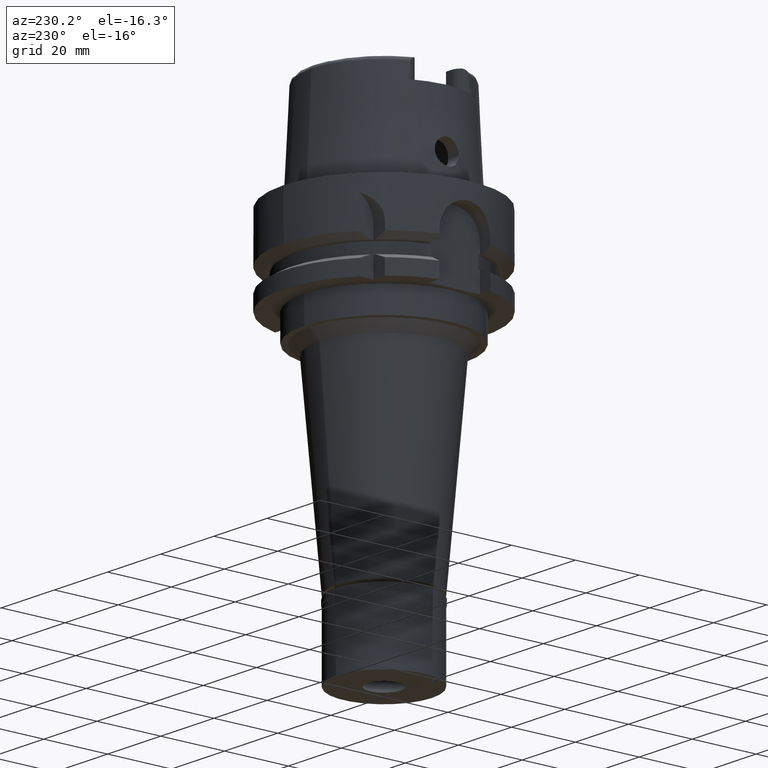
[diagram: clean part render]
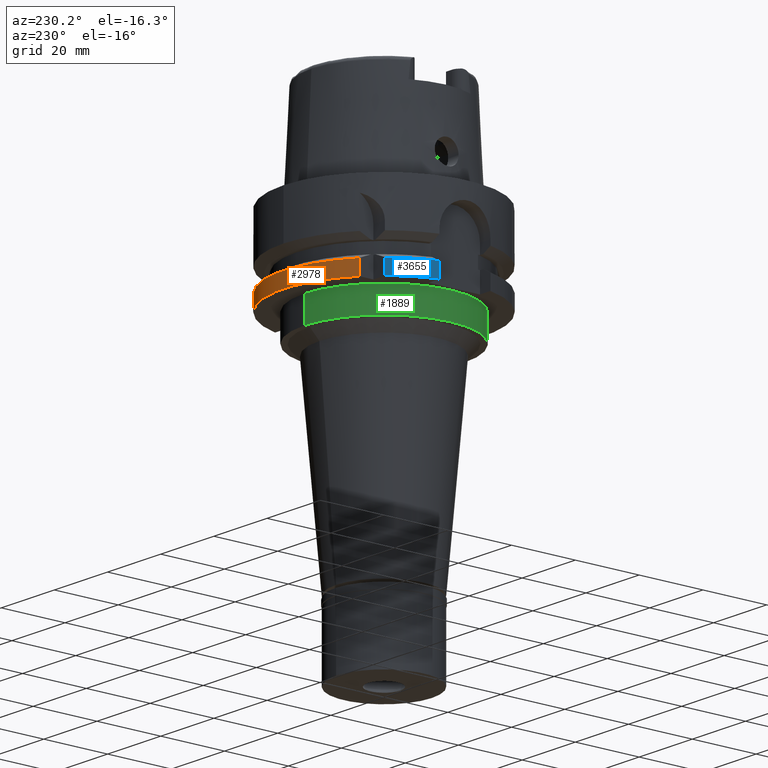
[diagram: same view with three faces highlighted in distinct colors, each labeled with its STEP entity id]
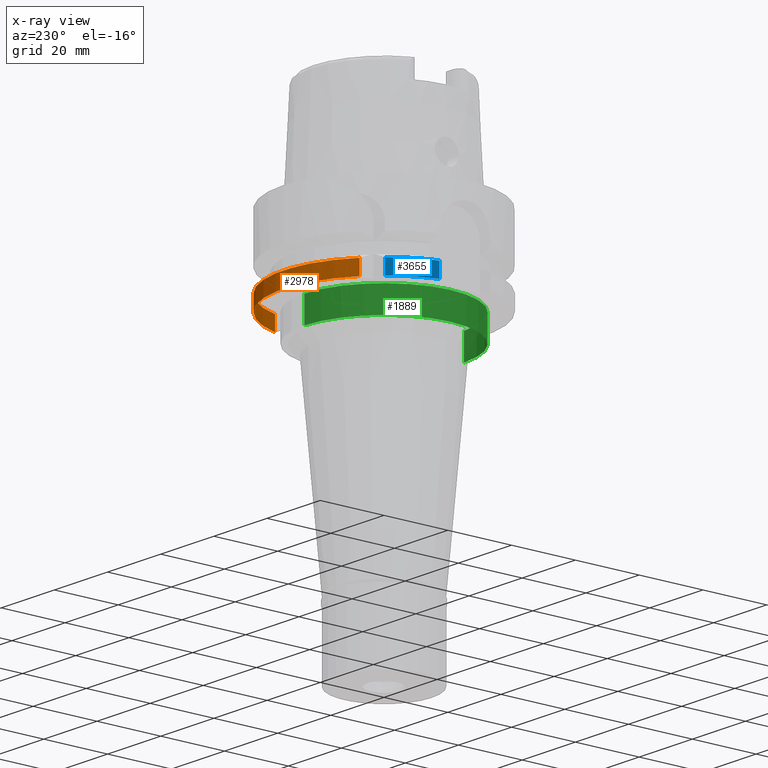
[diagram: x-ray of the same camera — body ghosted, the three highlighted faces saturated]
A machine part, auxiliary view with three faces highlighted in distinct colors.
The next image is the same camera in x-ray (body ghosted, the three faces saturated) — at least one of them is partly hidden behind the body in this view.
Their STEP definitions:

[orange] entity #2978 — the highlighted cylindrical surface (partial cylindrical patch) has radius 31.5 mm, axis along (0, 0, 1).
#14 = VERTEX_POINT ( 'NONE', #3301 ) ;
#128 = VERTEX_POINT ( 'NONE', #2289 ) ;
#192 = ORIENTED_EDGE ( 'NONE', *, *, #2640, .T. ) ;
#483 = CARTESIAN_POINT ( 'NONE',  ( -20.00000000000000000, 24.33617949844698458, -22.91836563500000068 ) ) ;
#591 = VECTOR ( 'NONE', #2671, 1000.000000000000114 ) ;
#796 = VERTEX_POINT ( 'NONE', #1227 ) ;
#801 = CIRCLE ( 'NONE', #1505, 31.50000000000000000 ) ;
#824 = EDGE_CURVE ( 'NONE', #1903, #14, #801, .T. ) ;
#832 = DIRECTION ( 'NONE',  ( 0.0000000000000000000, 1.000000000000000000, 0.0000000000000000000 ) ) ;
#876 = B_SPLINE_CURVE_WITH_KNOTS ( 'NONE', 3,
 ( #3922, #483, #1442, #2613 ),
 .UNSPECIFIED., .F., .F.,
 ( 4, 4 ),
 ( 0.0000000000000000000, 1.000000000000000000 ),
 .UNSPECIFIED. ) ;
#899 = AXIS2_PLACEMENT_3D ( 'NONE', #5359, #1705, #1626 ) ;
#1227 = CARTESIAN_POINT ( 'NONE',  ( 30.18691748977999723, 9.000000692501998856, -21.37750466033000052 ) ) ;
#1442 = CARTESIAN_POINT ( 'NONE',  ( -20.00000000000000000, 24.33618327286396621, -24.45918281749999679 ) ) ;
#1467 = LINE ( 'NONE', #4368, #591 ) ;
#1505 = AXIS2_PLACEMENT_3D ( 'NONE', #2904, #2468, #2014 ) ;
#1626 = DIRECTION ( 'NONE',  ( -0.6349206349206079070, 0.7725773665802099233, 0.0000000000000000000 ) ) ;
#1705 = DIRECTION ( 'NONE',  ( 0.0000000000000000000, 0.0000000000000000000, -1.000000000000000000 ) ) ;
#1903 = VERTEX_POINT ( 'NONE', #4390 ) ;
#1984 = DIRECTION ( 'NONE',  ( 0.0000000000000000000, 0.0000000000000000000, 1.000000000000000000 ) ) ;
#2014 = DIRECTION ( 'NONE',  ( 0.0000000000000000000, 1.000000000000000000, 0.0000000000000000000 ) ) ;
#2289 = CARTESIAN_POINT ( 'NONE',  ( -20.00001377820999693, 24.33617572402999940, -21.37754845249999747 ) ) ;
#2464 = CARTESIAN_POINT ( 'NONE',  ( 0.0000000000000000000, 0.0000000000000000000, 0.0000000000000000000 ) ) ;
#2468 = DIRECTION ( 'NONE',  ( 0.0000000000000000000, 0.0000000000000000000, 1.000000000000000000 ) ) ;
#2613 = CARTESIAN_POINT ( 'NONE',  ( -20.00000000000000000, 24.33618704727999926, -26.00000000000000000 ) ) ;
#2640 = EDGE_CURVE ( 'NONE', #128, #796, #5392, .T. ) ;
#2671 = DIRECTION ( 'NONE',  ( -4.466501118554943944E-08, 1.498112946369981561E-07, 0.9999999999999876765 ) ) ;
#2757 = ORIENTED_EDGE ( 'NONE', *, *, #824, .T. ) ;
#2904 = CARTESIAN_POINT ( 'NONE',  ( 0.0000000000000000000, 0.0000000000000000000, -26.00000000000000000 ) ) ;
#2978 = ADVANCED_FACE ( 'NONE', ( #4098 ), #5412, .T. ) ;
#3301 = CARTESIAN_POINT ( 'NONE',  ( -20.00000000000000000, 24.33618704727999926, -26.00000000000000000 ) ) ;
#3552 = ORIENTED_EDGE ( 'NONE', *, *, #4576, .F. ) ;
#3922 = CARTESIAN_POINT ( 'NONE',  ( -20.00001377820999693, 24.33617572402999940, -21.37754845249999747 ) ) ;
#4098 = FACE_OUTER_BOUND ( 'NONE', #4179, .T. ) ;
#4179 = EDGE_LOOP ( 'NONE', ( #192, #4210, #2757, #3552 ) ) ;
#4210 = ORIENTED_EDGE ( 'NONE', *, *, #4481, .F. ) ;
#4303 = AXIS2_PLACEMENT_3D ( 'NONE', #2464, #1984, #832 ) ;
#4368 = CARTESIAN_POINT ( 'NONE',  ( 30.18691769625000276, 9.000000000000000000, -26.00000000000000000 ) ) ;
#4390 = CARTESIAN_POINT ( 'NONE',  ( 30.18691769625000276, 9.000000000000000000, -26.00000000000000000 ) ) ;
#4481 = EDGE_CURVE ( 'NONE', #1903, #796, #1467, .T. ) ;
#4576 = EDGE_CURVE ( 'NONE', #128, #14, #876, .T. ) ;
#5359 = CARTESIAN_POINT ( 'NONE',  ( 0.0000000000000000000, 0.0000000000000000000, -21.37749907476000288 ) ) ;
#5392 = CIRCLE ( 'NONE', #899, 31.50000000000000711 ) ;
#5412 = CYLINDRICAL_SURFACE ( 'NONE', #4303, 31.50000000000000000 ) ;

[blue] entity #3655 — the highlighted cylindrical surface (partial cylindrical patch) has radius 31.5 mm, axis along (0, 0, 1).
#400 = FACE_OUTER_BOUND ( 'NONE', #2739, .T. ) ;
#443 = EDGE_CURVE ( 'NONE', #1388, #2429, #2048, .T. ) ;
#588 = EDGE_CURVE ( 'NONE', #2790, #2429, #1865, .T. ) ;
#691 = VERTEX_POINT ( 'NONE', #3414 ) ;
#779 = CIRCLE ( 'NONE', #2796, 31.50000000000000000 ) ;
#792 = CARTESIAN_POINT ( 'NONE',  ( -30.46719549928999982, 7.999999900497000382, -21.37749817145999742 ) ) ;
#855 = ORIENTED_EDGE ( 'NONE', *, *, #4932, .T. ) ;
#1038 = CARTESIAN_POINT ( 'NONE',  ( -30.46719547316000032, 8.000000000000000000, -26.00000000000000000 ) ) ;
#1351 = CARTESIAN_POINT ( 'NONE',  ( -30.46719547317000121, 8.000000000001000089, -21.37749907476000288 ) ) ;
#1388 = VERTEX_POINT ( 'NONE', #1351 ) ;
#1398 = AXIS2_PLACEMENT_3D ( 'NONE', #5403, #2968, #1663 ) ;
#1570 = DIRECTION ( 'NONE',  ( -5.375450050143217706E-07, -6.540899232592266923E-07, 0.9999999999996415090 ) ) ;
#1663 = DIRECTION ( 'NONE',  ( 0.0000000000000000000, 1.000000000000000000, 0.0000000000000000000 ) ) ;
#1865 = CIRCLE ( 'NONE', #4935, 31.50000000000000711 ) ;
#2048 = LINE ( 'NONE', #792, #2471 ) ;
#2061 = CARTESIAN_POINT ( 'NONE',  ( 0.0000000000000000000, 0.0000000000000000000, -21.37749907476000288 ) ) ;
#2323 = CARTESIAN_POINT ( 'NONE',  ( -24.33618704727999926, 20.00000000000000000, -26.00000000000000000 ) ) ;
#2429 = VERTEX_POINT ( 'NONE', #1038 ) ;
#2471 = VECTOR ( 'NONE', #2934, 1000.000000000000000 ) ;
#2562 = DIRECTION ( 'NONE',  ( 0.0000000000000000000, 0.0000000000000000000, -1.000000000000000000 ) ) ;
#2655 = DIRECTION ( 'NONE',  ( 0.0000000000000000000, 0.0000000000000000000, 1.000000000000000000 ) ) ;
#2739 = EDGE_LOOP ( 'NONE', ( #3169, #2930, #855, #3194 ) ) ;
#2790 = VERTEX_POINT ( 'NONE', #4376 ) ;
#2796 = AXIS2_PLACEMENT_3D ( 'NONE', #2061, #2562, #4994 ) ;
#2930 = ORIENTED_EDGE ( 'NONE', *, *, #443, .F. ) ;
#2934 = DIRECTION ( 'NONE',  ( 5.652302588628998356E-09, 2.152591978751999645E-08, -0.9999999999999997780 ) ) ;
#2968 = DIRECTION ( 'NONE',  ( 0.0000000000000000000, 0.0000000000000000000, 1.000000000000000000 ) ) ;
#3094 = CARTESIAN_POINT ( 'NONE',  ( 0.0000000000000000000, 0.0000000000000000000, -26.00000000000000000 ) ) ;
#3169 = ORIENTED_EDGE ( 'NONE', *, *, #588, .T. ) ;
#3194 = ORIENTED_EDGE ( 'NONE', *, *, #3342, .F. ) ;
#3342 = EDGE_CURVE ( 'NONE', #2790, #691, #5366, .T. ) ;
#3414 = CARTESIAN_POINT ( 'NONE',  ( -24.33618953209000324, 19.99999697646000030, -21.37748824071000087 ) ) ;
#3655 = ADVANCED_FACE ( 'NONE', ( #400 ), #3812, .T. ) ;
#3812 = CYLINDRICAL_SURFACE ( 'NONE', #1398, 31.50000000000000000 ) ;
#4349 = DIRECTION ( 'NONE',  ( -0.7725773665802099233, 0.6349206349206079070, 0.0000000000000000000 ) ) ;
#4376 = CARTESIAN_POINT ( 'NONE',  ( -24.33618704727999926, 20.00000000000000000, -26.00000000000000000 ) ) ;
#4734 = VECTOR ( 'NONE', #1570, 1000.000000000000114 ) ;
#4932 = EDGE_CURVE ( 'NONE', #1388, #691, #779, .T. ) ;
#4935 = AXIS2_PLACEMENT_3D ( 'NONE', #3094, #2655, #4349 ) ;
#4994 = DIRECTION ( 'NONE',  ( -0.9672125547036138915, 0.2539682539683034701, 0.0000000000000000000 ) ) ;
#5366 = LINE ( 'NONE', #2323, #4734 ) ;
#5403 = CARTESIAN_POINT ( 'NONE',  ( 0.0000000000000000000, 0.0000000000000000000, 0.0000000000000000000 ) ) ;

[green] entity #1889 — the highlighted cylindrical surface (partial cylindrical patch) has radius 25 mm, axis along (0, 0, 1).
#216 = EDGE_LOOP ( 'NONE', ( #2764, #4380, #2350, #3647 ) ) ;
#249 = CARTESIAN_POINT ( 'NONE',  ( 0.0000000000000000000, 25.00000000000000000, -26.00000000000000000 ) ) ;
#261 = CIRCLE ( 'NONE', #442, 25.00000000000000000 ) ;
#391 = CARTESIAN_POINT ( 'NONE',  ( 0.0000000000000000000, 25.00000000000000000, -26.00000000000000000 ) ) ;
#434 = VERTEX_POINT ( 'NONE', #391 ) ;
#442 = AXIS2_PLACEMENT_3D ( 'NONE', #2268, #1827, #5125 ) ;
#506 = CIRCLE ( 'NONE', #949, 25.00000000000000000 ) ;
#595 = DIRECTION ( 'NONE',  ( 0.0000000000000000000, 0.0000000000000000000, -1.000000000000000000 ) ) ;
#666 = CARTESIAN_POINT ( 'NONE',  ( 0.0000000000000000000, 25.00000000000000000, -34.00000000000000000 ) ) ;
#709 = LINE ( 'NONE', #249, #2717 ) ;
#905 = CARTESIAN_POINT ( 'NONE',  ( 0.0000000000000000000, 0.0000000000000000000, 0.0000000000000000000 ) ) ;
#949 = AXIS2_PLACEMENT_3D ( 'NONE', #2722, #595, #4788 ) ;
#1003 = VERTEX_POINT ( 'NONE', #666 ) ;
#1008 = VERTEX_POINT ( 'NONE', #2357 ) ;
#1019 = FACE_OUTER_BOUND ( 'NONE', #216, .T. ) ;
#1236 = DIRECTION ( 'NONE',  ( 0.0000000000000000000, 0.0000000000000000000, -1.000000000000000000 ) ) ;
#1569 = EDGE_CURVE ( 'NONE', #1003, #1688, #261, .T. ) ;
#1680 = VECTOR ( 'NONE', #1236, 1000.000000000000000 ) ;
#1688 = VERTEX_POINT ( 'NONE', #4228 ) ;
#1827 = DIRECTION ( 'NONE',  ( 0.0000000000000000000, 0.0000000000000000000, 1.000000000000000000 ) ) ;
#1889 = ADVANCED_FACE ( 'NONE', ( #1019 ), #5175, .T. ) ;
#2052 = LINE ( 'NONE', #3321, #1680 ) ;
#2262 = DIRECTION ( 'NONE',  ( 0.0000000000000000000, 0.0000000000000000000, 1.000000000000000000 ) ) ;
#2268 = CARTESIAN_POINT ( 'NONE',  ( 0.0000000000000000000, 0.0000000000000000000, -34.00000000000000000 ) ) ;
#2350 = ORIENTED_EDGE ( 'NONE', *, *, #3968, .T. ) ;
#2357 = CARTESIAN_POINT ( 'NONE',  ( 0.0000000000000000000, -25.00000000000000000, -26.00000000000000000 ) ) ;
#2717 = VECTOR ( 'NONE', #3973, 1000.000000000000000 ) ;
#2722 = CARTESIAN_POINT ( 'NONE',  ( 0.0000000000000000000, 0.0000000000000000000, -26.00000000000000000 ) ) ;
#2764 = ORIENTED_EDGE ( 'NONE', *, *, #1569, .T. ) ;
#3321 = CARTESIAN_POINT ( 'NONE',  ( 0.0000000000000000000, -25.00000000000000000, -26.00000000000000000 ) ) ;
#3647 = ORIENTED_EDGE ( 'NONE', *, *, #3898, .T. ) ;
#3898 = EDGE_CURVE ( 'NONE', #434, #1003, #709, .T. ) ;
#3968 = EDGE_CURVE ( 'NONE', #1008, #434, #506, .T. ) ;
#3973 = DIRECTION ( 'NONE',  ( 0.0000000000000000000, 0.0000000000000000000, -1.000000000000000000 ) ) ;
#4144 = EDGE_CURVE ( 'NONE', #1008, #1688, #2052, .T. ) ;
#4228 = CARTESIAN_POINT ( 'NONE',  ( 0.0000000000000000000, -25.00000000000000000, -34.00000000000000000 ) ) ;
#4380 = ORIENTED_EDGE ( 'NONE', *, *, #4144, .F. ) ;
#4788 = DIRECTION ( 'NONE',  ( 0.0000000000000000000, -1.000000000000000000, 0.0000000000000000000 ) ) ;
#4950 = AXIS2_PLACEMENT_3D ( 'NONE', #905, #2262, #5119 ) ;
#5119 = DIRECTION ( 'NONE',  ( 0.0000000000000000000, 1.000000000000000000, 0.0000000000000000000 ) ) ;
#5125 = DIRECTION ( 'NONE',  ( 0.0000000000000000000, 1.000000000000000000, 0.0000000000000000000 ) ) ;
#5175 = CYLINDRICAL_SURFACE ( 'NONE', #4950, 25.00000000000000000 ) ;